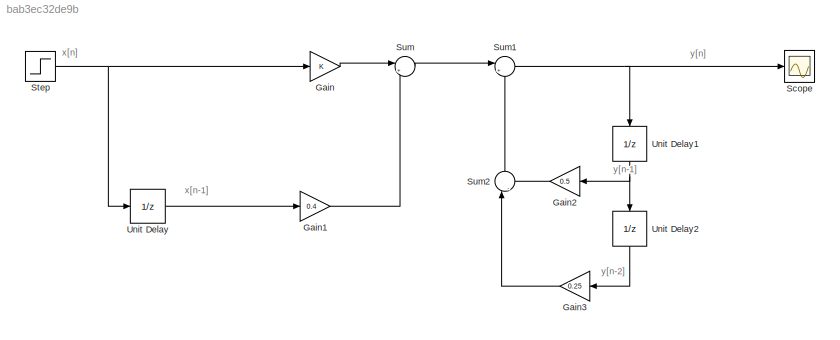
MODEL slx_bab3ec32de9b
KIND model
CONFIG AbsTol = auto
CONFIG EnableMultiTasking = off
CONFIG FixedStep = auto
CONFIG MaxStep = auto
CONFIG MinStep = auto
CONFIG RelTol = 1e-3
CONFIG SampleTimeConstraint = Unconstrained
CONFIG SolverName = VariableStepAuto
CONFIG StartTime = 0.0
CONFIG StopTime = 10.0
BLOCK [Gain] Gain
BLOCK [Gain] Gain1
  Gain = 0.4
BLOCK [Gain] Gain2
  Gain = 0.5
  NameLocation = top
BLOCK [Gain] Gain3
  Gain = 0.25
  NameLocation = top
BLOCK [Scope] Scope
  Floating = off
  NumInputPorts = 1
  Ports = [1]
  ScopeSpecificationString = Simulink.scopes.TimeScopeBlockCfg('CurrentConfiguration', extmgr.ConfigurationSet(extmgr.Configuration('Core','General UI',true),extmgr.Configuration('Core','Source UI',true),extmgr.Configuration('Sources','WiredSimulink',true),extmgr.Configuration('Visuals','Time Domain',true,'SerializedDisplays',{struct('MinYLimReal','-0.2625','MaxYLimReal','2.3625','YLabelReal','','MinYLimMag','0.00000','MaxYLi...<+1371ch>
BLOCK [Step] Step
  SampleTime = 0
BLOCK [Sum] Sum
  Inputs = |++
  Ports = [2, 1]
BLOCK [Sum] Sum1
  Inputs = |++
  Ports = [2, 1]
BLOCK [Sum] Sum2
  Inputs = |-+
  NameLocation = right
  Ports = [2, 1]
BLOCK [UnitDelay] Unit Delay
  HasFrameUpgradeWarning = on
  SampleTime = -1
BLOCK [UnitDelay] Unit Delay1
  HasFrameUpgradeWarning = on
  NameLocation = left
  SampleTime = -1
BLOCK [UnitDelay] Unit Delay2
  HasFrameUpgradeWarning = on
  NameLocation = left
  SampleTime = -1
ANNOTATION (root): x[n-1]
ANNOTATION (root): x[n]
ANNOTATION (root): y[n-1]
ANNOTATION (root): y[n-2]
ANNOTATION (root): y[n]
LINE Gain1:1 -> Sum:2
LINE Gain2:1 -> Sum2:2
LINE Gain3:1 -> Sum2:1
LINE Gain:1 -> Sum:1
NET Step:1 -> Gain:1, Unit Delay:1
NET Sum1:1 -> Scope:1, Unit Delay1:1
LINE Sum2:1 -> Sum1:2
LINE Sum:1 -> Sum1:1
NET Unit Delay1:1 -> Gain2:1, Unit Delay2:1
LINE Unit Delay2:1 -> Gain3:1
LINE Unit Delay:1 -> Gain1:1
note: NET lines group one-source signal fan-out (src -> all destinations, sorted); 1:1 wires keep LINE
